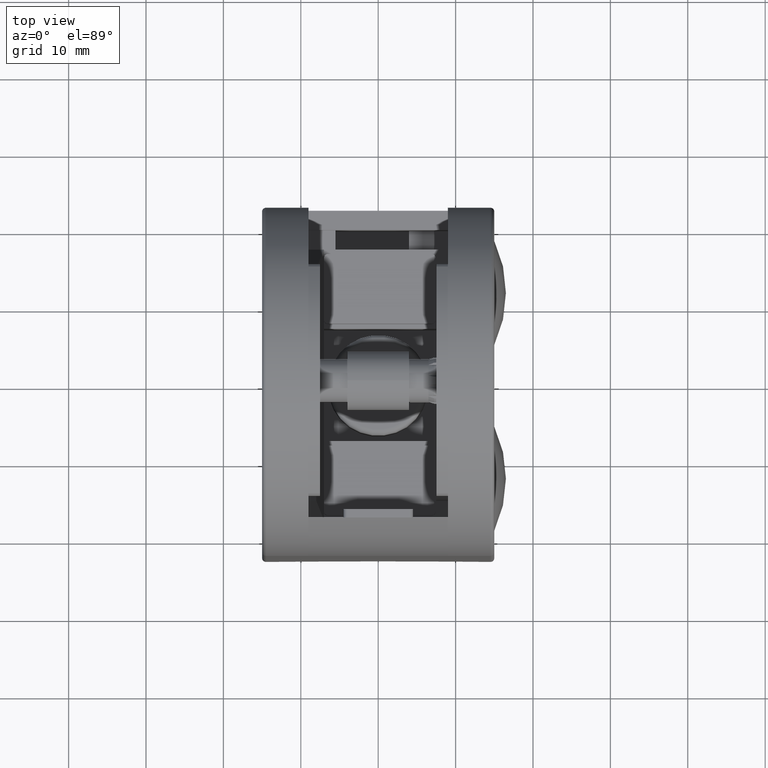
[diagram: clean part render]
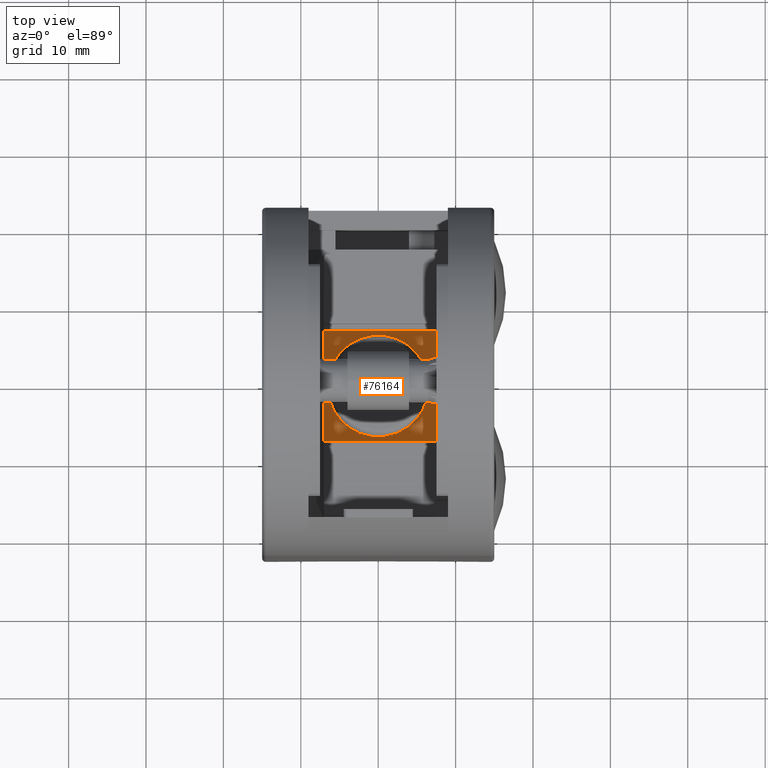
[diagram: same view with one face highlighted and labeled with its STEP entity id]
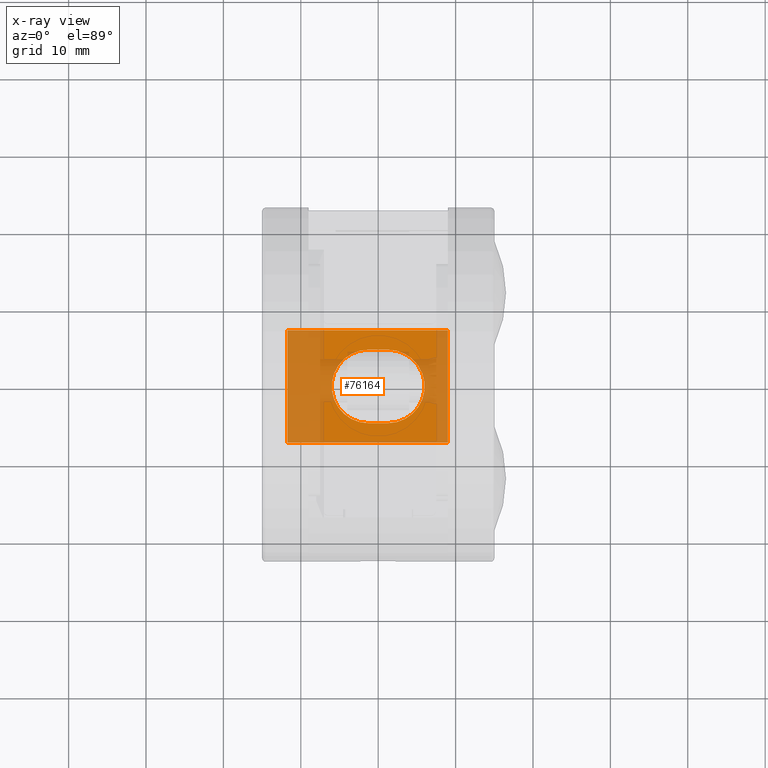
[diagram: x-ray of the same camera — body ghosted, the highlighted face saturated]
A machine part, top view. The second image highlights one B-rep face of the part: STEP entity #76164.
The next image is the same camera in x-ray: the body ghosted, the highlighted face saturated — about 54% of this face is hidden behind the body in this view.
In plain terms, the highlighted planar face has unit normal (0, 0, -1).
Its self-contained STEP definition (entity closure, byte-faithful):
#1454 = CARTESIAN_POINT ( 'NONE',  ( 24.00000000000000000, -22.50000000000002132, 6.000000000000000000 ) ) ;
#1600 = VERTEX_POINT ( 'NONE', #50907 ) ;
#1874 = ORIENTED_EDGE ( 'NONE', *, *, #68224, .F. ) ;
#2611 = FACE_BOUND ( 'NONE', #63572, .T. ) ;
#2694 = ORIENTED_EDGE ( 'NONE', *, *, #52074, .T. ) ;
#4841 = EDGE_CURVE ( 'NONE', #68734, #13505, #42393, .T. ) ;
#6375 = EDGE_CURVE ( 'NONE', #57279, #29942, #20558, .T. ) ;
#6502 = DIRECTION ( 'NONE',  ( 1.000000000000000000, 0.000000000000000000, 0.000000000000000000 ) ) ;
#8158 = DIRECTION ( 'NONE',  ( -0.000000000000000000, -1.000000000000000000, -0.000000000000000000 ) ) ;
#8327 = EDGE_CURVE ( 'NONE', #27354, #68734, #53189, .T. ) ;
#11599 = CARTESIAN_POINT ( 'NONE',  ( 3.249999999999999556, 7.250000000000000000, 5.999999999999998224 ) ) ;
#12716 = DIRECTION ( 'NONE',  ( -1.000000000000000000, 0.000000000000000000, 0.000000000000000000 ) ) ;
#13505 = VERTEX_POINT ( 'NONE', #20652 ) ;
#14361 = AXIS2_PLACEMENT_3D ( 'NONE', #72796, #34001, #53225 ) ;
#15466 = CARTESIAN_POINT ( 'NONE',  ( 24.00000000000000000, -4.750000000000000888, 6.000000000000000000 ) ) ;
#15750 = VERTEX_POINT ( 'NONE', #51144 ) ;
#16442 = FACE_OUTER_BOUND ( 'NONE', #36525, .T. ) ;
#18863 = AXIS2_PLACEMENT_3D ( 'NONE', #1454, #65003, #33358 ) ;
#20558 = LINE ( 'NONE', #69982, #35452 ) ;
#20652 = CARTESIAN_POINT ( 'NONE',  ( 16.25000000000000000, 4.750000000000000000, 6.000000000000012434 ) ) ;
#21250 = ORIENTED_EDGE ( 'NONE', *, *, #39100, .F. ) ;
#22142 = VECTOR ( 'NONE', #33070, 1000.000000000000000 ) ;
#25517 = VECTOR ( 'NONE', #6502, 1000.000000000000000 ) ;
#27354 = VERTEX_POINT ( 'NONE', #38338 ) ;
#27513 = CARTESIAN_POINT ( 'NONE',  ( 39.03537495375491062, -7.250000000000000000, 5.999999999999998224 ) ) ;
#29111 = LINE ( 'NONE', #27513, #22142 ) ;
#29942 = VERTEX_POINT ( 'NONE', #11599 ) ;
#32224 = CARTESIAN_POINT ( 'NONE',  ( 3.249999999999999556, -7.250000000000000000, 5.999999999999998224 ) ) ;
#33030 = VECTOR ( 'NONE', #8158, 1000.000000000000000 ) ;
#33070 = DIRECTION ( 'NONE',  ( -1.000000000000000000, -0.000000000000000000, -0.000000000000000000 ) ) ;
#33358 = DIRECTION ( 'NONE',  ( -1.000000000000000000, 0.000000000000000000, -0.000000000000000000 ) ) ;
#33757 = CARTESIAN_POINT ( 'NONE',  ( 24.00000000000000000, -22.50000000000002132, 6.000000000000000000 ) ) ;
#34001 = DIRECTION ( 'NONE',  ( 0.000000000000000000, 0.000000000000000000, -1.000000000000000000 ) ) ;
#35452 = VECTOR ( 'NONE', #50893, 1000.000000000000000 ) ;
#36525 = EDGE_LOOP ( 'NONE', ( #21250, #1874, #2694, #38008 ) ) ;
#38008 = ORIENTED_EDGE ( 'NONE', *, *, #6375, .F. ) ;
#38338 = CARTESIAN_POINT ( 'NONE',  ( 13.75000000000000178, -4.750000000000000888, 6.000000000000000000 ) ) ;
#39100 = EDGE_CURVE ( 'NONE', #15750, #57279, #29111, .T. ) ;
#40986 = DIRECTION ( 'NONE',  ( -1.000000000000000000, 0.000000000000000000, 0.000000000000000000 ) ) ;
#42322 = EDGE_CURVE ( 'NONE', #1600, #27354, #67035, .T. ) ;
#42393 = LINE ( 'NONE', #42903, #25517 ) ;
#42903 = CARTESIAN_POINT ( 'NONE',  ( 24.00000000000000000, 4.750000000000000888, 6.000000000000000000 ) ) ;
#44526 = CARTESIAN_POINT ( 'NONE',  ( 24.00000000000000000, 7.250000000000002665, 6.000000000000000000 ) ) ;
#46210 = VECTOR ( 'NONE', #40986, 1000.000000000000000 ) ;
#48426 = CARTESIAN_POINT ( 'NONE',  ( 39.03537495375491062, 7.250000000000000000, 5.999999999999998224 ) ) ;
#50794 = CARTESIAN_POINT ( 'NONE',  ( 13.75000000000000000, -5.204170427930413395E-16, 5.999999999999998224 ) ) ;
#50893 = DIRECTION ( 'NONE',  ( 0.000000000000000000, 1.000000000000000000, 0.000000000000000000 ) ) ;
#50907 = CARTESIAN_POINT ( 'NONE',  ( 16.25000000000000000, -4.750000000000000000, 6.000000000000012434 ) ) ;
#51144 = CARTESIAN_POINT ( 'NONE',  ( 24.00000000000000000, -7.250000000000000000, 5.999999999999998224 ) ) ;
#52074 = EDGE_CURVE ( 'NONE', #81266, #29942, #73166, .T. ) ;
#53189 = CIRCLE ( 'NONE', #79291, 4.749999999999999112 ) ;
#53225 = DIRECTION ( 'NONE',  ( -1.000000000000000000, 0.000000000000000000, 0.000000000000000000 ) ) ;
#55963 = LINE ( 'NONE', #33757, #33030 ) ;
#57279 = VERTEX_POINT ( 'NONE', #32224 ) ;
#61966 = CIRCLE ( 'NONE', #14361, 4.750000000000000888 ) ;
#63572 = EDGE_LOOP ( 'NONE', ( #70545, #66525, #65160, #69480 ) ) ;
#65003 = DIRECTION ( 'NONE',  ( 0.000000000000000000, 0.000000000000000000, -1.000000000000000000 ) ) ;
#65160 = ORIENTED_EDGE ( 'NONE', *, *, #42322, .T. ) ;
#66525 = ORIENTED_EDGE ( 'NONE', *, *, #67197, .T. ) ;
#67035 = LINE ( 'NONE', #15466, #46210 ) ;
#67197 = EDGE_CURVE ( 'NONE', #13505, #1600, #61966, .T. ) ;
#68224 = EDGE_CURVE ( 'NONE', #81266, #15750, #55963, .T. ) ;
#68574 = DIRECTION ( 'NONE',  ( -1.000000000000000000, -0.000000000000000000, -0.000000000000000000 ) ) ;
#68734 = VERTEX_POINT ( 'NONE', #76837 ) ;
#69480 = ORIENTED_EDGE ( 'NONE', *, *, #8327, .T. ) ;
#69982 = CARTESIAN_POINT ( 'NONE',  ( 3.249999999999999556, -7.250000000000000000, 5.999999999999998224 ) ) ;
#70545 = ORIENTED_EDGE ( 'NONE', *, *, #4841, .T. ) ;
#70805 = PLANE ( 'NONE',  #18863 ) ;
#72796 = CARTESIAN_POINT ( 'NONE',  ( 16.25000000000000000, -5.204170427930413395E-16, 5.999999999999998224 ) ) ;
#73166 = LINE ( 'NONE', #48426, #75677 ) ;
#75677 = VECTOR ( 'NONE', #68574, 1000.000000000000000 ) ;
#76164 = ADVANCED_FACE ( 'NONE', ( #2611, #16442 ), #70805, .F. ) ;
#76837 = CARTESIAN_POINT ( 'NONE',  ( 13.75000000000000000, 4.750000000000000000, 6.000000000000012434 ) ) ;
#77052 = DIRECTION ( 'NONE',  ( 0.000000000000000000, 0.000000000000000000, -1.000000000000000000 ) ) ;
#79291 = AXIS2_PLACEMENT_3D ( 'NONE', #50794, #77052, #12716 ) ;
#81266 = VERTEX_POINT ( 'NONE', #44526 ) ;